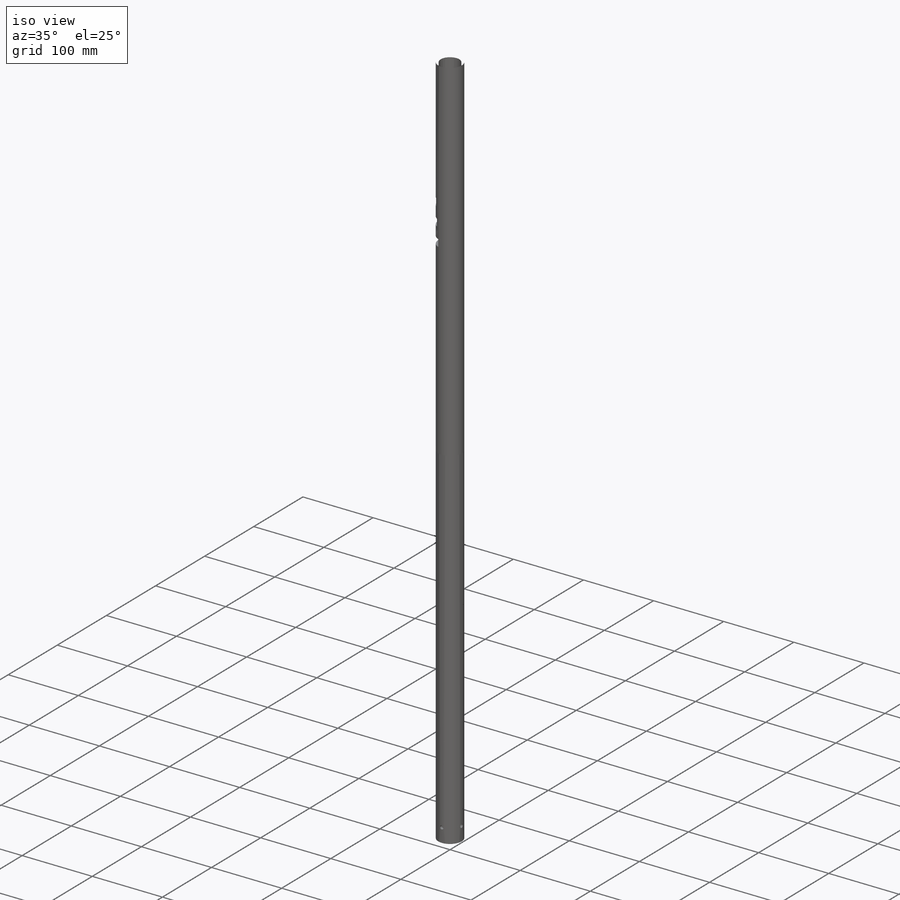
[diagram: iso view]
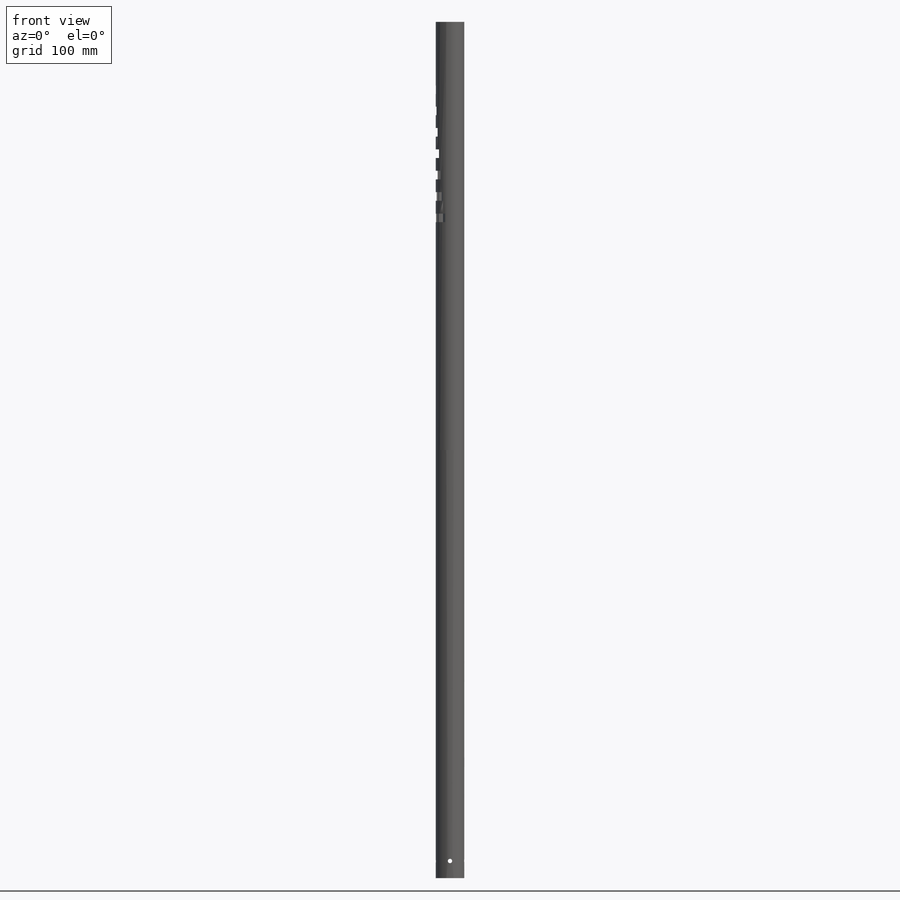
[diagram: front view]
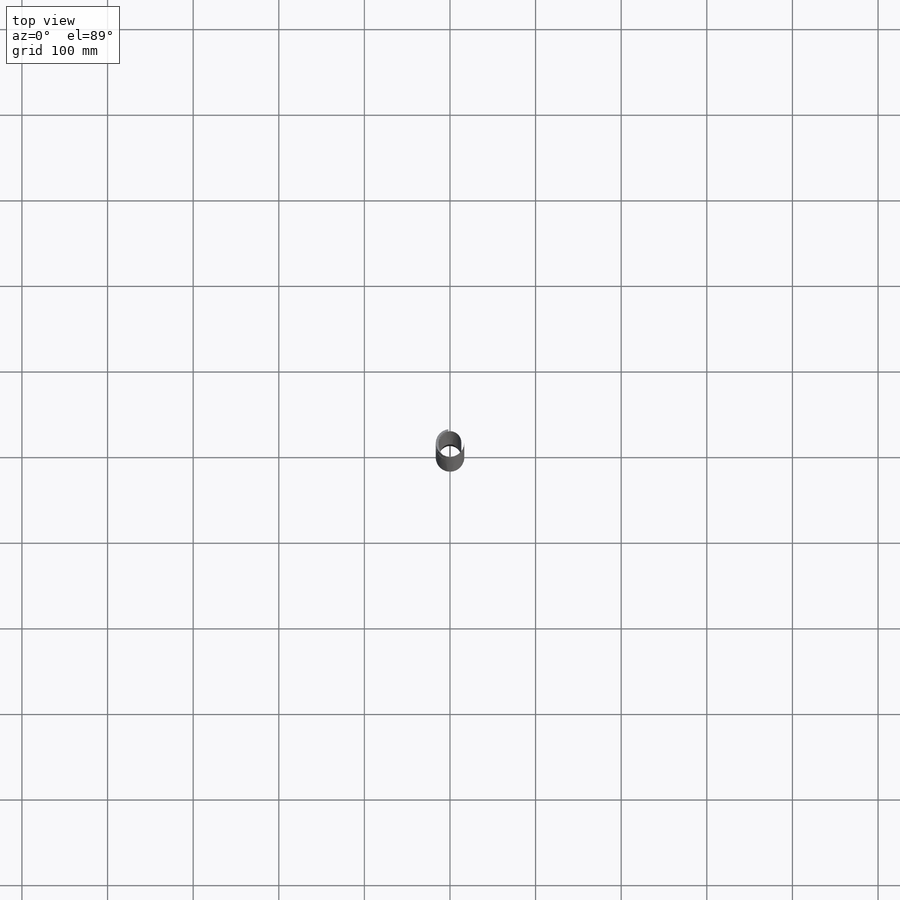
[diagram: top view]
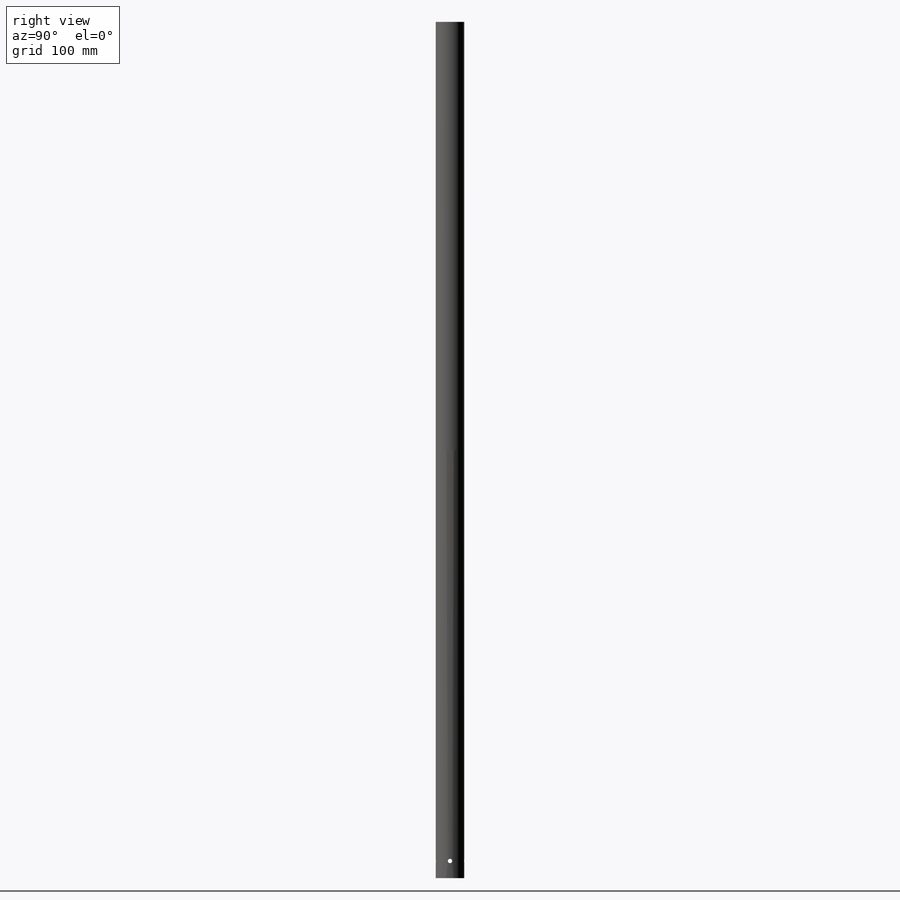
[diagram: right view]
SOLIDWORKS PART (.sldprt)
format: sldprt  version: not decoded by parser v0  size: 406,016 bytes
history: native  units: mm
features: sketch x8, cut_extrude x2, material x1, extrude x1, helix x1, hole x1 (+12 scaffold rows collapsed)
feature tree (26):
  scaffold x12  (default folders/planes/origin — collapsed)
  material  "AISI 316 Annealed Stainless Steel Bar (SS)"
  sketch  "Sketch1"  dims[D1=33.401mm D2=26.645mm]
  extrude  "Boss-Extrude1"  Depth=1000mm
  sketch  "Sketch2"  dims[D1=25.0mm D2=19.0mm]
  cut_extrude  "Cut-Extrude1"  Depth=300mm
  sketch  "3DSketch1"  dims[c1.D1=25.0mm c1.D2=25.0mm c2.D1=33.401mm c2.D2=33.401mm c3.D1=33.401mm]
  helix  "Helix/Spiral1"  Pitch=200mm
  hole  "#8 (0.199) Diameter Hole3"  Diameter=5.0546mm Depth=33.401mm
  sketch  "3DSketch6"  dims[D1=20.0mm D2=20.0mm]
  sketch  "Sketch11"  dims[hole-wizard template sketch: 60 standard entries collapsed; hole parameters kept: c18.Thru Hole Depth=33.401mm]
  sketch  "Sketch12"
  sketch  "3DSketch8"
  sketch  "Sketch13"  dims[D1=25.0mm D2=25.0mm D3=10.0mm D4=10.0mm D5=10.0mm]
  cut_extrude  "Cut-Extrude2"  Depth=5mm
decode coverage: 11 of 13 modeling features carry decoded parameters
note: ~ marks probable driven/reference dimensions
note: suppression state not decoded; provenance and decode notes live in map.json
